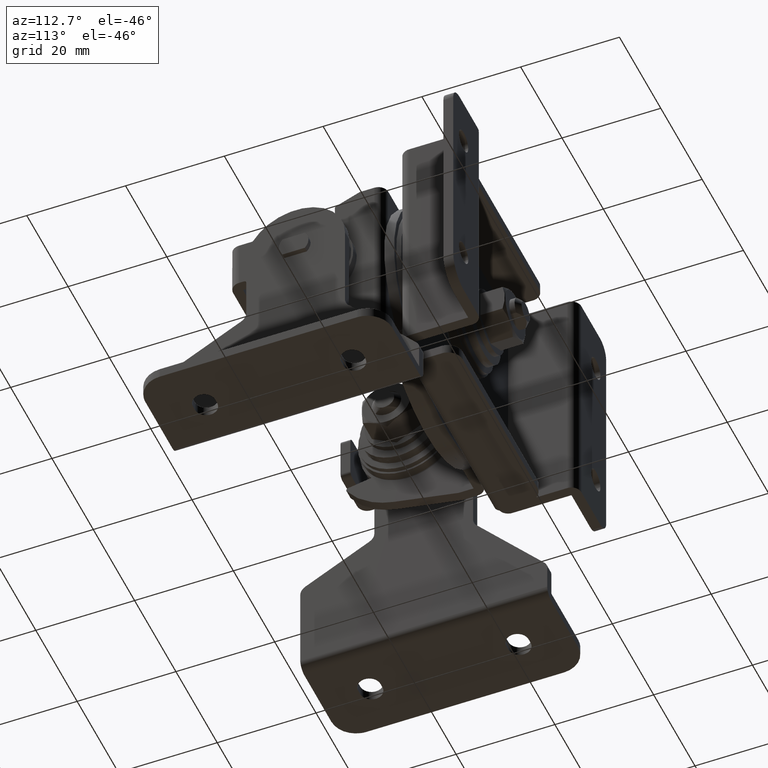
[diagram: clean part render]
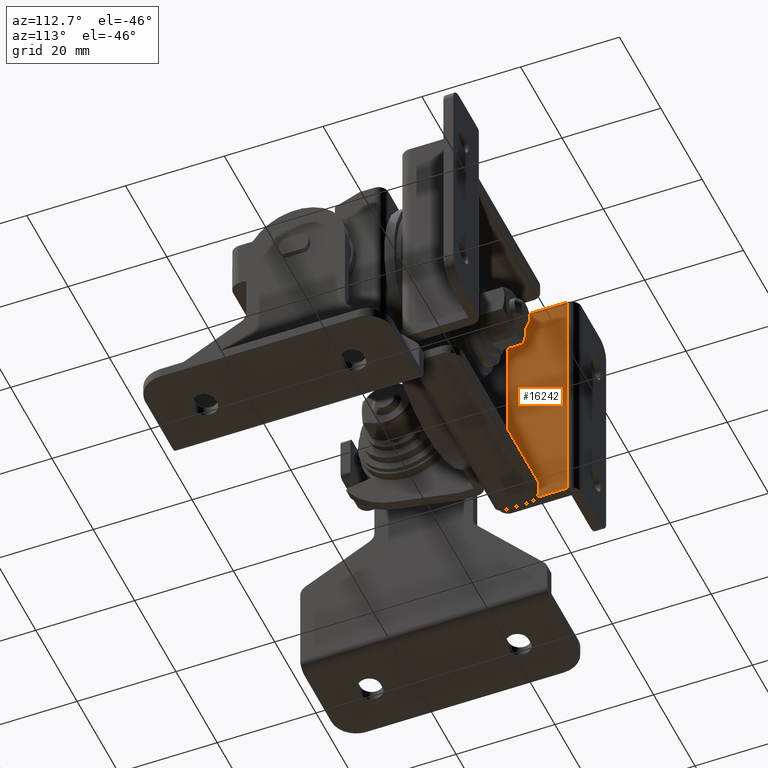
[diagram: same view with one face highlighted and labeled with its STEP entity id]
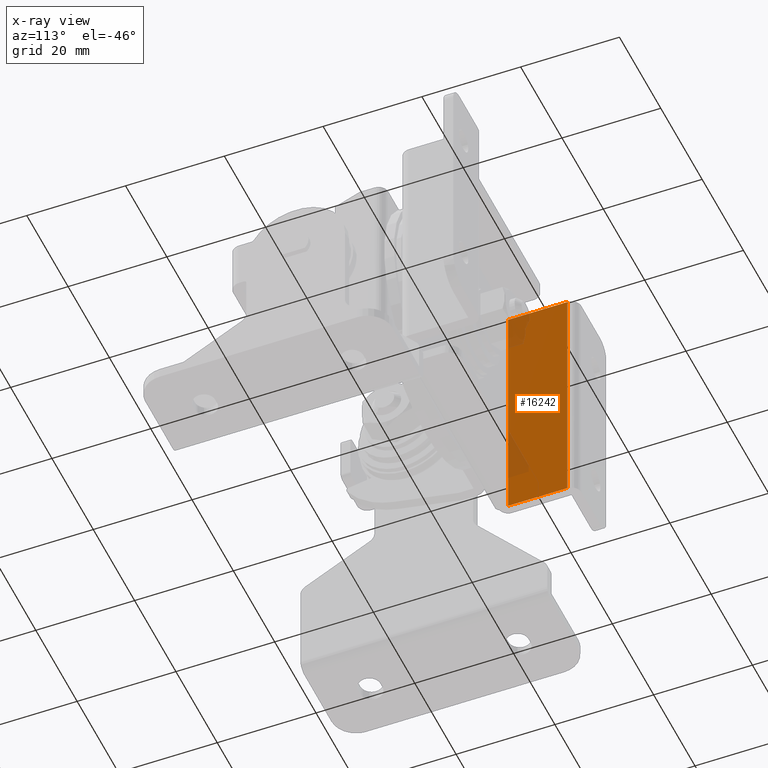
[diagram: x-ray of the same camera — body ghosted, the highlighted face saturated]
A machine part, auxiliary view. The second image highlights one B-rep face of the part: STEP entity #16242.
The next image is the same camera in x-ray: the body ghosted, the highlighted face saturated — about 10% of this face is hidden behind the body in this view.
In plain terms, the highlighted face is a freeform B-spline surface patch.
Its self-contained STEP definition (entity closure, byte-faithful):
#15415=CARTESIAN_POINT('',(-23.0,-2.0,25.0));
#15416=VERTEX_POINT('',#15415);
#15432=CARTESIAN_POINT('',(-23.0,-2.0,-25.0));
#15433=VERTEX_POINT('',#15432);
#15434=CARTESIAN_POINT('',(-23.0,-2.0,-25.0));
#15435=CARTESIAN_POINT('',(-23.0,-2.0,25.0));
#15436=QUASI_UNIFORM_CURVE('',1,(#15434,#15435),.UNSPECIFIED.,.F.,.U.);
#15437=EDGE_CURVE('',#15433,#15416,#15436,.T.);
#16215=CARTESIAN_POINT('',(-23.0,-14.599399976741680,27.497499903090301));
#16216=CARTESIAN_POINT('',(-23.0,-14.599399976741680,-27.497501244194812));
#16217=CARTESIAN_POINT('',(-23.0,-1.400599701393248,27.497499903090301));
#16218=CARTESIAN_POINT('',(-23.0,-1.400599701393248,-27.497501244194812));
#16219=B_SPLINE_SURFACE_WITH_KNOTS('',1,1,((#16215,#16217),(#16216,#16218)),.UNSPECIFIED.,.F.,.F.,.U.,(2,2),(2,2),(0.0,54.995001147285109),(0.0,13.198800275348431),.UNSPECIFIED.);
#16220=CARTESIAN_POINT('',(-23.0,-14.0,-25.0));
#16221=VERTEX_POINT('',#16220);
#16222=CARTESIAN_POINT('',(-23.0,-2.0,-25.0));
#16223=CARTESIAN_POINT('',(-23.0,-14.0,-25.0));
#16224=QUASI_UNIFORM_CURVE('',1,(#16222,#16223),.UNSPECIFIED.,.F.,.U.);
#16225=EDGE_CURVE('',#15433,#16221,#16224,.T.);
#16226=ORIENTED_EDGE('',*,*,#16225,.F.);
#16227=ORIENTED_EDGE('',*,*,#15437,.T.);
#16228=CARTESIAN_POINT('',(-23.0,-14.0,25.0));
#16229=VERTEX_POINT('',#16228);
#16230=CARTESIAN_POINT('',(-23.0,-2.0,25.0));
#16231=CARTESIAN_POINT('',(-23.0,-14.0,25.0));
#16232=QUASI_UNIFORM_CURVE('',1,(#16230,#16231),.UNSPECIFIED.,.F.,.U.);
#16233=EDGE_CURVE('',#15416,#16229,#16232,.T.);
#16234=ORIENTED_EDGE('',*,*,#16233,.T.);
#16235=CARTESIAN_POINT('',(-23.0,-14.0,25.0));
#16236=CARTESIAN_POINT('',(-23.0,-14.0,-25.0));
#16237=QUASI_UNIFORM_CURVE('',1,(#16235,#16236),.UNSPECIFIED.,.F.,.U.);
#16238=EDGE_CURVE('',#16229,#16221,#16237,.T.);
#16239=ORIENTED_EDGE('',*,*,#16238,.T.);
#16240=EDGE_LOOP('',(#16226,#16227,#16234,#16239));
#16241=FACE_OUTER_BOUND('',#16240,.T.);
#16242=ADVANCED_FACE('',(#16241),#16219,.T.);